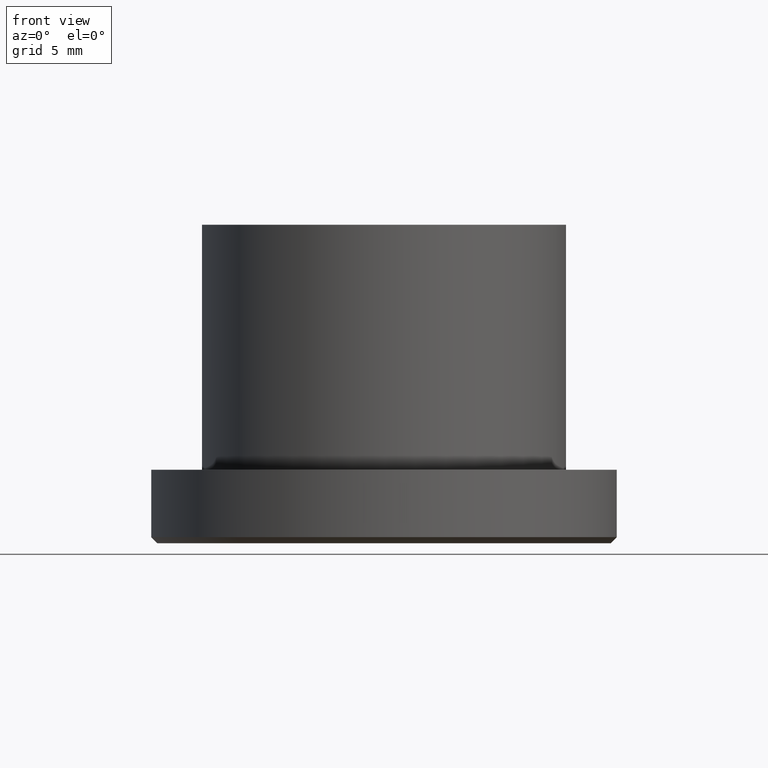
[diagram: clean part render]
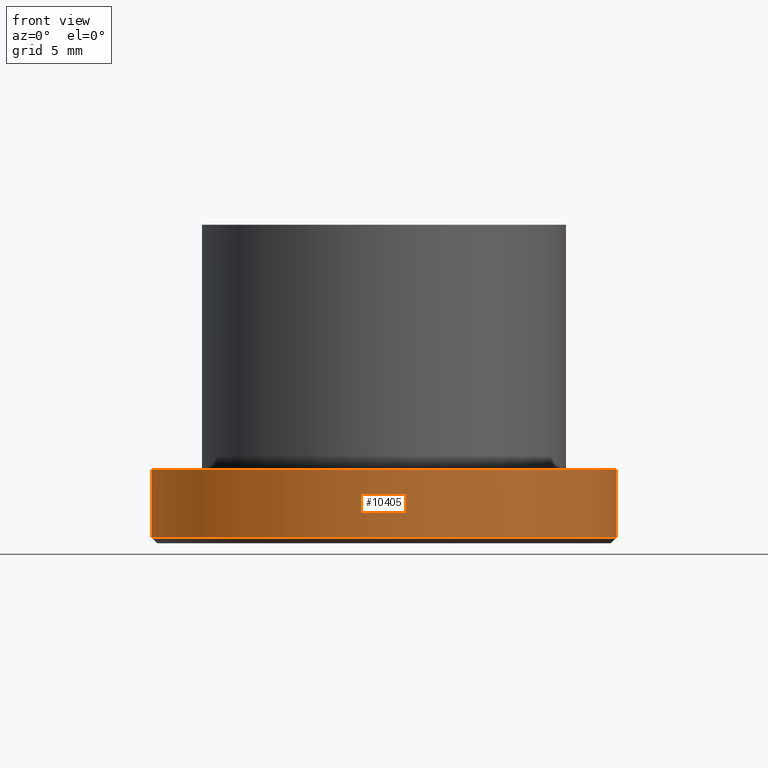
[diagram: same view with one face highlighted and labeled with its STEP entity id]
A machine part, front view. The second image highlights one B-rep face of the part: STEP entity #10405.
In plain terms, the highlighted cylindrical surface (partial cylindrical patch) has radius 19 mm, axis along (-0, -0, 1).
Its self-contained STEP definition (entity closure, byte-faithful):
#94 = AXIS2_PLACEMENT_3D ( 'NONE', #5129, #7323, #7413 ) ;
#321 = CARTESIAN_POINT ( 'NONE',  ( 19.00000000000000000, 0.000000000000000000, -6.999999999999997335 ) ) ;
#569 = CARTESIAN_POINT ( 'NONE',  ( 19.00000000000000000, 0.000000000000000000, -12.49999999999999289 ) ) ;
#836 = CARTESIAN_POINT ( 'NONE',  ( -19.00000000000000000, 2.326828918379970970E-15, -12.49999999999999289 ) ) ;
#1466 = EDGE_CURVE ( 'NONE', #7387, #9699, #4067, .T. ) ;
#1475 = ORIENTED_EDGE ( 'NONE', *, *, #8170, .F. ) ;
#2066 = CARTESIAN_POINT ( 'NONE',  ( 0.000000000000000000, 0.000000000000000000, -12.49999999999999289 ) ) ;
#2759 = EDGE_CURVE ( 'NONE', #9699, #5257, #9280, .T. ) ;
#3114 = CYLINDRICAL_SURFACE ( 'NONE', #94, 19.00000000000000000 ) ;
#3381 = DIRECTION ( 'NONE',  ( -0.000000000000000000, -0.000000000000000000, 1.000000000000000000 ) ) ;
#3447 = EDGE_LOOP ( 'NONE', ( #12252, #13414, #11124, #1475 ) ) ;
#4067 = CIRCLE ( 'NONE', #9698, 19.00000000000000000 ) ;
#4204 = DIRECTION ( 'NONE',  ( -0.000000000000000000, -0.000000000000000000, 1.000000000000000000 ) ) ;
#4466 = VERTEX_POINT ( 'NONE', #6105 ) ;
#5129 = CARTESIAN_POINT ( 'NONE',  ( 0.000000000000000000, 0.000000000000000000, 13.00000000000000000 ) ) ;
#5241 = LINE ( 'NONE', #5547, #6074 ) ;
#5257 = VERTEX_POINT ( 'NONE', #321 ) ;
#5547 = CARTESIAN_POINT ( 'NONE',  ( -19.00000000000000000, 2.326828918379970970E-15, 13.00000000000000000 ) ) ;
#5991 = CARTESIAN_POINT ( 'NONE',  ( 0.000000000000000000, 0.000000000000000000, -6.999999999999997335 ) ) ;
#6032 = DIRECTION ( 'NONE',  ( -0.000000000000000000, -0.000000000000000000, 1.000000000000000000 ) ) ;
#6074 = VECTOR ( 'NONE', #3381, 1000.000000000000000 ) ;
#6105 = CARTESIAN_POINT ( 'NONE',  ( -19.00000000000000000, 2.326828918379970970E-15, -6.999999999999997335 ) ) ;
#6543 = VECTOR ( 'NONE', #8078, 1000.000000000000000 ) ;
#7021 = CARTESIAN_POINT ( 'NONE',  ( 19.00000000000000000, 0.000000000000000000, 13.00000000000000000 ) ) ;
#7030 = DIRECTION ( 'NONE',  ( 1.000000000000000000, 0.000000000000000000, 0.000000000000000000 ) ) ;
#7323 = DIRECTION ( 'NONE',  ( -0.000000000000000000, -0.000000000000000000, 1.000000000000000000 ) ) ;
#7360 = DIRECTION ( 'NONE',  ( 1.000000000000000000, 0.000000000000000000, 0.000000000000000000 ) ) ;
#7387 = VERTEX_POINT ( 'NONE', #836 ) ;
#7413 = DIRECTION ( 'NONE',  ( 1.000000000000000000, 0.000000000000000000, 0.000000000000000000 ) ) ;
#8078 = DIRECTION ( 'NONE',  ( -0.000000000000000000, -0.000000000000000000, 1.000000000000000000 ) ) ;
#8170 = EDGE_CURVE ( 'NONE', #4466, #5257, #12485, .T. ) ;
#9280 = LINE ( 'NONE', #7021, #6543 ) ;
#9698 = AXIS2_PLACEMENT_3D ( 'NONE', #2066, #4204, #7360 ) ;
#9699 = VERTEX_POINT ( 'NONE', #569 ) ;
#10405 = ADVANCED_FACE ( 'NONE', ( #11138 ), #3114, .T. ) ;
#11124 = ORIENTED_EDGE ( 'NONE', *, *, #2759, .T. ) ;
#11138 = FACE_OUTER_BOUND ( 'NONE', #3447, .T. ) ;
#12252 = ORIENTED_EDGE ( 'NONE', *, *, #13065, .F. ) ;
#12485 = CIRCLE ( 'NONE', #12707, 19.00000000000000000 ) ;
#12707 = AXIS2_PLACEMENT_3D ( 'NONE', #5991, #6032, #7030 ) ;
#13065 = EDGE_CURVE ( 'NONE', #7387, #4466, #5241, .T. ) ;
#13414 = ORIENTED_EDGE ( 'NONE', *, *, #1466, .T. ) ;